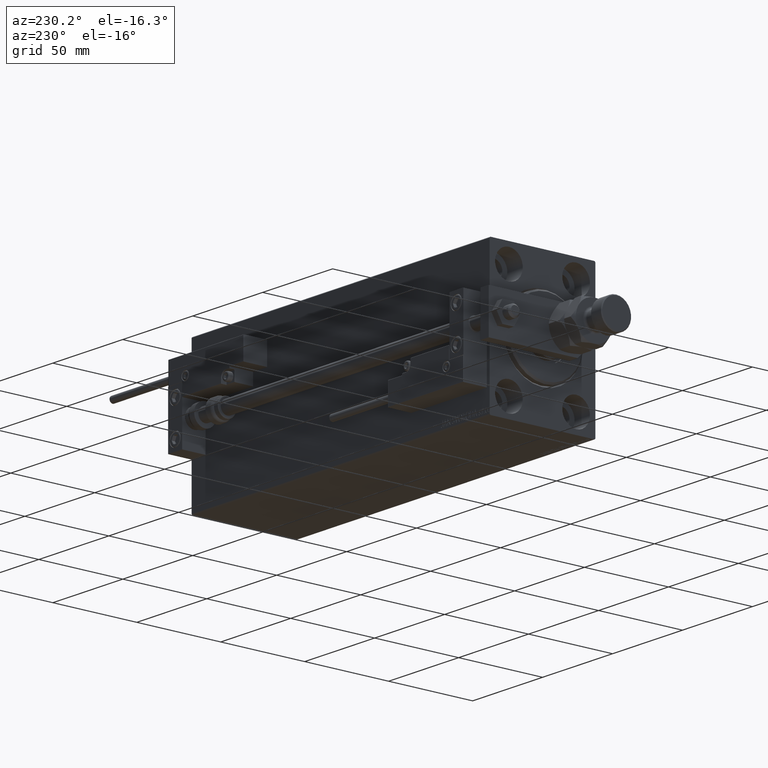
[diagram: clean part render]
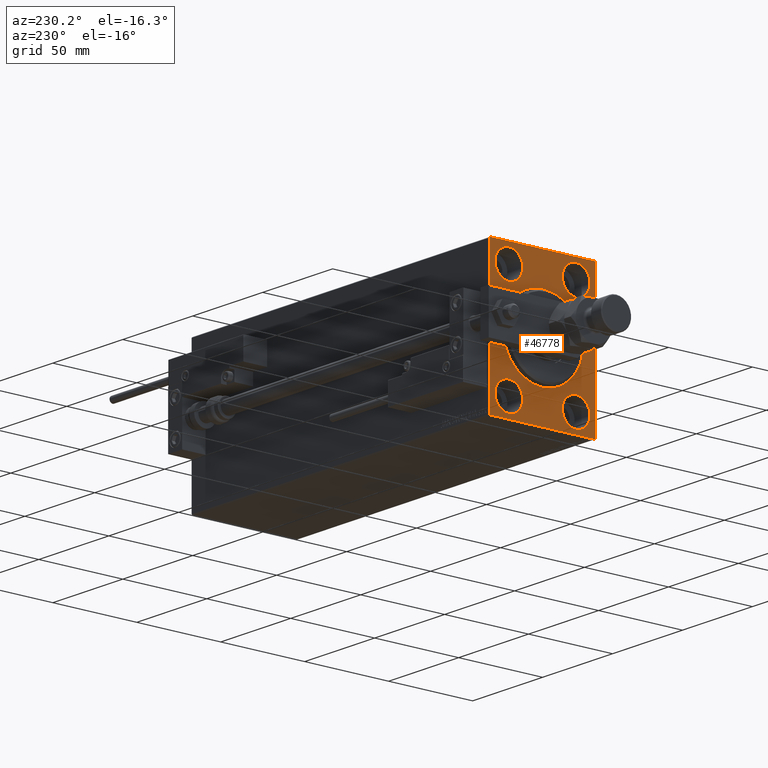
[diagram: same view with one face highlighted and labeled with its STEP entity id]
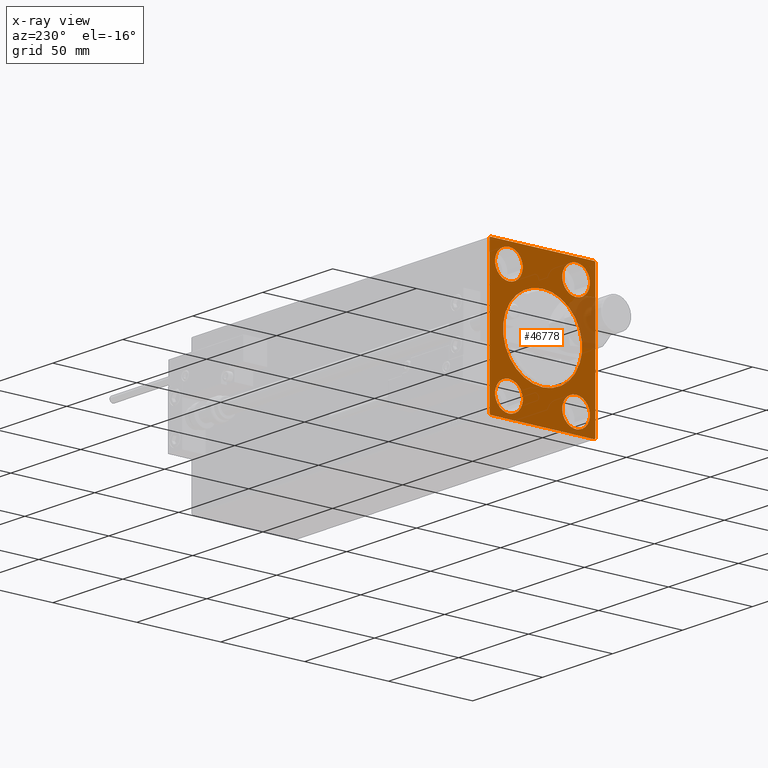
[diagram: x-ray of the same camera — body ghosted, the highlighted face saturated]
A machine part, auxiliary view. The second image highlights one B-rep face of the part: STEP entity #46778.
The next image is the same camera in x-ray: the body ghosted, the highlighted face saturated — about 10% of this face is hidden behind the body in this view.
In plain terms, the highlighted planar face has unit normal (1, 0, 0).
Its self-contained STEP definition (entity closure, byte-faithful):
#49 = CARTESIAN_POINT ( 'NONE',  ( 0.000000000000000000, 20.00000000000000355, 31.50000000000000000 ) ) ;
#116 = FACE_BOUND ( 'NONE', #24507, .T. ) ;
#239 = ORIENTED_EDGE ( 'NONE', *, *, #20538, .T. ) ;
#650 = DIRECTION ( 'NONE',  ( -0.000000000000000000, 0.7071067811865474617, 0.7071067811865474617 ) ) ;
#747 = CARTESIAN_POINT ( 'NONE',  ( 0.000000000000000000, 31.00000000000000000, 42.50000000000000711 ) ) ;
#900 = DIRECTION ( 'NONE',  ( -1.000000000000000000, 0.000000000000000000, 0.000000000000000000 ) ) ;
#915 = DIRECTION ( 'NONE',  ( -0.000000000000000000, -0.7071067811865474617, 0.7071067811865474617 ) ) ;
#1416 = VERTEX_POINT ( 'NONE', #13866 ) ;
#1520 = AXIS2_PLACEMENT_3D ( 'NONE', #28145, #24224, #36265 ) ;
#1670 = VECTOR ( 'NONE', #20394, 1000.000000000000114 ) ;
#2887 = ORIENTED_EDGE ( 'NONE', *, *, #42961, .F. ) ;
#3552 = FACE_BOUND ( 'NONE', #5518, .T. ) ;
#3731 = AXIS2_PLACEMENT_3D ( 'NONE', #9117, #32650, #40477 ) ;
#4458 = LINE ( 'NONE', #16995, #1670 ) ;
#4510 = VERTEX_POINT ( 'NONE', #8345 ) ;
#4522 = EDGE_CURVE ( 'NONE', #49983, #11042, #28918, .T. ) ;
#4584 = CIRCLE ( 'NONE', #3731, 8.250000000000000000 ) ;
#4688 = VECTOR ( 'NONE', #41697, 1000.000000000000000 ) ;
#4996 = AXIS2_PLACEMENT_3D ( 'NONE', #16097, #900, #20269 ) ;
#5462 = ORIENTED_EDGE ( 'NONE', *, *, #51056, .F. ) ;
#5518 = EDGE_LOOP ( 'NONE', ( #13144, #45182 ) ) ;
#6024 = DIRECTION ( 'NONE',  ( -1.000000000000000000, 0.000000000000000000, 0.000000000000000000 ) ) ;
#6096 = EDGE_CURVE ( 'NONE', #23954, #4510, #47262, .T. ) ;
#6410 = AXIS2_PLACEMENT_3D ( 'NONE', #35302, #35801, #47842 ) ;
#6929 = CARTESIAN_POINT ( 'NONE',  ( 0.000000000000000000, 19.99999999999999645, -39.74999999999999289 ) ) ;
#7254 = VERTEX_POINT ( 'NONE', #35149 ) ;
#8289 = CARTESIAN_POINT ( 'NONE',  ( 0.000000000000000000, 20.00000000000000355, 39.74999999999999289 ) ) ;
#8345 = CARTESIAN_POINT ( 'NONE',  ( 0.000000000000000000, 20.00000000000000355, 23.25000000000000355 ) ) ;
#8774 = LINE ( 'NONE', #36485, #30946 ) ;
#8866 = CARTESIAN_POINT ( 'NONE',  ( 0.000000000000000000, -20.00000000000000355, -23.24999999999999289 ) ) ;
#9117 = CARTESIAN_POINT ( 'NONE',  ( 0.000000000000000000, -20.00000000000000355, -31.49999999999999289 ) ) ;
#9583 = VERTEX_POINT ( 'NONE', #8866 ) ;
#9714 = DIRECTION ( 'NONE',  ( 0.000000000000000000, 0.000000000000000000, 1.000000000000000000 ) ) ;
#9942 = EDGE_CURVE ( 'NONE', #44252, #15308, #16635, .T. ) ;
#10386 = CIRCLE ( 'NONE', #39580, 8.249999999999992895 ) ;
#11042 = VERTEX_POINT ( 'NONE', #28094 ) ;
#11200 = CIRCLE ( 'NONE', #40404, 8.250000000000000000 ) ;
#11330 = DIRECTION ( 'NONE',  ( -1.000000000000000000, 0.000000000000000000, 0.000000000000000000 ) ) ;
#11393 = EDGE_LOOP ( 'NONE', ( #29716, #35190 ) ) ;
#11480 = CARTESIAN_POINT ( 'NONE',  ( 0.000000000000000000, 31.50000000000000000, 42.00000000000000711 ) ) ;
#11553 = ORIENTED_EDGE ( 'NONE', *, *, #19948, .T. ) ;
#11908 = DIRECTION ( 'NONE',  ( 0.000000000000000000, 0.000000000000000000, -1.000000000000000000 ) ) ;
#12151 = FACE_BOUND ( 'NONE', #11393, .T. ) ;
#12333 = ORIENTED_EDGE ( 'NONE', *, *, #6096, .F. ) ;
#12496 = CARTESIAN_POINT ( 'NONE',  ( 0.000000000000000000, -20.00000000000000355, -31.49999999999999289 ) ) ;
#12755 = DIRECTION ( 'NONE',  ( 0.000000000000000000, 0.000000000000000000, 1.000000000000000000 ) ) ;
#12768 = EDGE_CURVE ( 'NONE', #48497, #13459, #14905, .T. ) ;
#13144 = ORIENTED_EDGE ( 'NONE', *, *, #12768, .T. ) ;
#13459 = VERTEX_POINT ( 'NONE', #36339 ) ;
#13866 = CARTESIAN_POINT ( 'NONE',  ( 0.000000000000000000, 31.50000000000001421, -42.00000000000000711 ) ) ;
#14037 = ORIENTED_EDGE ( 'NONE', *, *, #22993, .T. ) ;
#14226 = ORIENTED_EDGE ( 'NONE', *, *, #44478, .F. ) ;
#14531 = CARTESIAN_POINT ( 'NONE',  ( 0.000000000000000000, 31.00000000000001421, -42.50000000000000711 ) ) ;
#14627 = CARTESIAN_POINT ( 'NONE',  ( 0.000000000000000000, 0.000000000000000000, 23.50000000000004619 ) ) ;
#14905 = CIRCLE ( 'NONE', #1520, 23.50000000000004619 ) ;
#15069 = EDGE_CURVE ( 'NONE', #11042, #49983, #36724, .T. ) ;
#15197 = EDGE_CURVE ( 'NONE', #13459, #48497, #44223, .T. ) ;
#15308 = VERTEX_POINT ( 'NONE', #14531 ) ;
#16097 = CARTESIAN_POINT ( 'NONE',  ( 0.000000000000000000, -19.99999999999999645, 31.50000000000000000 ) ) ;
#16112 = CARTESIAN_POINT ( 'NONE',  ( 0.000000000000000000, -31.00000000000000000, -42.50000000000000711 ) ) ;
#16364 = VECTOR ( 'NONE', #48403, 1000.000000000000000 ) ;
#16635 = LINE ( 'NONE', #24731, #29811 ) ;
#16846 = ORIENTED_EDGE ( 'NONE', *, *, #9942, .F. ) ;
#16936 = DIRECTION ( 'NONE',  ( -1.000000000000000000, 0.000000000000000000, 0.000000000000000000 ) ) ;
#16995 = CARTESIAN_POINT ( 'NONE',  ( 0.000000000000000000, 31.50000000000001421, -42.00000000000000711 ) ) ;
#17166 = AXIS2_PLACEMENT_3D ( 'NONE', #49, #11330, #28032 ) ;
#17641 = CARTESIAN_POINT ( 'NONE',  ( 0.000000000000000000, 0.000000000000000000, 0.000000000000000000 ) ) ;
#17730 = ORIENTED_EDGE ( 'NONE', *, *, #34959, .F. ) ;
#19663 = VERTEX_POINT ( 'NONE', #6929 ) ;
#19948 = EDGE_CURVE ( 'NONE', #1416, #15308, #4458, .T. ) ;
#20071 = VECTOR ( 'NONE', #39978, 1000.000000000000114 ) ;
#20269 = DIRECTION ( 'NONE',  ( 0.000000000000000000, 0.000000000000000000, 1.000000000000000000 ) ) ;
#20394 = DIRECTION ( 'NONE',  ( 0.000000000000000000, -0.7071067811865474617, -0.7071067811865474617 ) ) ;
#20538 = EDGE_CURVE ( 'NONE', #21484, #27439, #8774, .T. ) ;
#20756 = CARTESIAN_POINT ( 'NONE',  ( 0.000000000000000000, -31.50000000000000000, -42.00000000000000711 ) ) ;
#21484 = VERTEX_POINT ( 'NONE', #22355 ) ;
#21718 = CARTESIAN_POINT ( 'NONE',  ( 0.000000000000000000, -20.00000000000000355, -39.74999999999999289 ) ) ;
#22081 = EDGE_CURVE ( 'NONE', #26207, #27439, #46030, .T. ) ;
#22355 = CARTESIAN_POINT ( 'NONE',  ( 0.000000000000000000, -31.50000000000000000, 41.99999999999999289 ) ) ;
#22739 = CARTESIAN_POINT ( 'NONE',  ( 0.000000000000000000, 20.00000000000000355, 31.50000000000000000 ) ) ;
#22993 = EDGE_CURVE ( 'NONE', #26207, #41857, #40240, .T. ) ;
#23954 = VERTEX_POINT ( 'NONE', #8289 ) ;
#24224 = DIRECTION ( 'NONE',  ( 1.000000000000000000, 0.000000000000000000, 0.000000000000000000 ) ) ;
#24462 = LINE ( 'NONE', #16112, #30552 ) ;
#24507 = EDGE_LOOP ( 'NONE', ( #29521, #17730 ) ) ;
#24731 = CARTESIAN_POINT ( 'NONE',  ( 0.000000000000000000, -31.50000000000000000, -42.50000000000000711 ) ) ;
#24756 = CIRCLE ( 'NONE', #38094, 8.250000000000000000 ) ;
#26207 = VERTEX_POINT ( 'NONE', #49529 ) ;
#27439 = VERTEX_POINT ( 'NONE', #50780 ) ;
#27845 = FACE_BOUND ( 'NONE', #44175, .T. ) ;
#28032 = DIRECTION ( 'NONE',  ( 0.000000000000000000, 0.000000000000000000, 1.000000000000000000 ) ) ;
#28094 = CARTESIAN_POINT ( 'NONE',  ( 0.000000000000000000, -19.99999999999999645, 23.25000000000000355 ) ) ;
#28145 = CARTESIAN_POINT ( 'NONE',  ( 0.000000000000000000, 0.000000000000000000, 0.000000000000000000 ) ) ;
#28918 = CIRCLE ( 'NONE', #6410, 8.249999999999992895 ) ;
#29521 = ORIENTED_EDGE ( 'NONE', *, *, #36925, .F. ) ;
#29716 = ORIENTED_EDGE ( 'NONE', *, *, #4522, .F. ) ;
#29811 = VECTOR ( 'NONE', #51447, 1000.000000000000000 ) ;
#30016 = ORIENTED_EDGE ( 'NONE', *, *, #43230, .F. ) ;
#30036 = AXIS2_PLACEMENT_3D ( 'NONE', #17641, #33601, #38022 ) ;
#30425 = EDGE_LOOP ( 'NONE', ( #30016, #239, #43175, #14037, #2887, #11553, #16846, #38248 ) ) ;
#30552 = VECTOR ( 'NONE', #915, 1000.000000000000114 ) ;
#30603 = DIRECTION ( 'NONE',  ( -1.000000000000000000, 0.000000000000000000, 0.000000000000000000 ) ) ;
#30866 = CARTESIAN_POINT ( 'NONE',  ( 0.000000000000000000, 19.99999999999999645, -31.49999999999999289 ) ) ;
#30946 = VECTOR ( 'NONE', #650, 1000.000000000000114 ) ;
#31259 = FACE_BOUND ( 'NONE', #34199, .T. ) ;
#31408 = CARTESIAN_POINT ( 'NONE',  ( 0.000000000000000000, 19.99999999999999645, -31.49999999999999289 ) ) ;
#31673 = CIRCLE ( 'NONE', #38351, 8.250000000000000000 ) ;
#32477 = CARTESIAN_POINT ( 'NONE',  ( 0.000000000000000000, -31.00000000000000000, -42.50000000000000711 ) ) ;
#32650 = DIRECTION ( 'NONE',  ( -1.000000000000000000, 0.000000000000000000, 0.000000000000000000 ) ) ;
#32716 = CARTESIAN_POINT ( 'NONE',  ( 0.000000000000000000, 31.50000000000001421, -42.50000000000000711 ) ) ;
#33601 = DIRECTION ( 'NONE',  ( 1.000000000000000000, 0.000000000000000000, 0.000000000000000000 ) ) ;
#33678 = LINE ( 'NONE', #32716, #16364 ) ;
#34199 = EDGE_LOOP ( 'NONE', ( #14226, #5462 ) ) ;
#34445 = VECTOR ( 'NONE', #38956, 1000.000000000000000 ) ;
#34959 = EDGE_CURVE ( 'NONE', #44410, #9583, #11200, .T. ) ;
#35149 = CARTESIAN_POINT ( 'NONE',  ( 0.000000000000000000, 19.99999999999999645, -23.24999999999999289 ) ) ;
#35190 = ORIENTED_EDGE ( 'NONE', *, *, #15069, .F. ) ;
#35302 = CARTESIAN_POINT ( 'NONE',  ( 0.000000000000000000, -19.99999999999999645, 31.50000000000000000 ) ) ;
#35448 = FACE_OUTER_BOUND ( 'NONE', #30425, .T. ) ;
#35801 = DIRECTION ( 'NONE',  ( -1.000000000000000000, 0.000000000000000000, 0.000000000000000000 ) ) ;
#35806 = EDGE_CURVE ( 'NONE', #4510, #23954, #10386, .T. ) ;
#36265 = DIRECTION ( 'NONE',  ( 0.000000000000000000, 0.000000000000000000, -1.000000000000000000 ) ) ;
#36339 = CARTESIAN_POINT ( 'NONE',  ( 0.000000000000000000, 2.877919977996285448E-15, -23.50000000000004619 ) ) ;
#36365 = DIRECTION ( 'NONE',  ( 0.000000000000000000, 0.000000000000000000, 1.000000000000000000 ) ) ;
#36485 = CARTESIAN_POINT ( 'NONE',  ( 0.000000000000000000, -31.50000000000000000, 41.99999999999999289 ) ) ;
#36724 = CIRCLE ( 'NONE', #4996, 8.249999999999992895 ) ;
#36925 = EDGE_CURVE ( 'NONE', #9583, #44410, #4584, .T. ) ;
#37778 = LINE ( 'NONE', #49301, #4688 ) ;
#38022 = DIRECTION ( 'NONE',  ( 0.000000000000000000, 0.000000000000000000, -1.000000000000000000 ) ) ;
#38094 = AXIS2_PLACEMENT_3D ( 'NONE', #30866, #30603, #9714 ) ;
#38248 = ORIENTED_EDGE ( 'NONE', *, *, #43169, .T. ) ;
#38351 = AXIS2_PLACEMENT_3D ( 'NONE', #31408, #44465, #36365 ) ;
#38956 = DIRECTION ( 'NONE',  ( 0.000000000000000000, -1.000000000000000000, -2.202823461557850341E-16 ) ) ;
#39580 = AXIS2_PLACEMENT_3D ( 'NONE', #22739, #6024, #42614 ) ;
#39978 = DIRECTION ( 'NONE',  ( -0.000000000000000000, 0.7071067811865474617, -0.7071067811865474617 ) ) ;
#40240 = LINE ( 'NONE', #747, #20071 ) ;
#40404 = AXIS2_PLACEMENT_3D ( 'NONE', #12496, #16936, #12755 ) ;
#40477 = DIRECTION ( 'NONE',  ( 0.000000000000000000, 0.000000000000000000, 1.000000000000000000 ) ) ;
#40645 = ORIENTED_EDGE ( 'NONE', *, *, #35806, .F. ) ;
#41697 = DIRECTION ( 'NONE',  ( 0.000000000000000000, 0.000000000000000000, -1.000000000000000000 ) ) ;
#41857 = VERTEX_POINT ( 'NONE', #11480 ) ;
#42614 = DIRECTION ( 'NONE',  ( 0.000000000000000000, 0.000000000000000000, 1.000000000000000000 ) ) ;
#42961 = EDGE_CURVE ( 'NONE', #1416, #41857, #33678, .T. ) ;
#43169 = EDGE_CURVE ( 'NONE', #44252, #49014, #24462, .T. ) ;
#43175 = ORIENTED_EDGE ( 'NONE', *, *, #22081, .F. ) ;
#43230 = EDGE_CURVE ( 'NONE', #21484, #49014, #37778, .T. ) ;
#43291 = CARTESIAN_POINT ( 'NONE',  ( 0.000000000000000000, 0.000000000000000000, 0.000000000000000000 ) ) ;
#44175 = EDGE_LOOP ( 'NONE', ( #12333, #40645 ) ) ;
#44223 = CIRCLE ( 'NONE', #30036, 23.50000000000004619 ) ;
#44252 = VERTEX_POINT ( 'NONE', #32477 ) ;
#44410 = VERTEX_POINT ( 'NONE', #21718 ) ;
#44465 = DIRECTION ( 'NONE',  ( -1.000000000000000000, 0.000000000000000000, 0.000000000000000000 ) ) ;
#44478 = EDGE_CURVE ( 'NONE', #7254, #19663, #24756, .T. ) ;
#45182 = ORIENTED_EDGE ( 'NONE', *, *, #15197, .T. ) ;
#46030 = LINE ( 'NONE', #46814, #34445 ) ;
#46778 = ADVANCED_FACE ( 'NONE', ( #3552, #31259, #12151, #27845, #116, #35448 ), #51664, .F. ) ;
#46814 = CARTESIAN_POINT ( 'NONE',  ( 0.000000000000000000, 31.50000000000000000, 42.50000000000000711 ) ) ;
#47262 = CIRCLE ( 'NONE', #17166, 8.249999999999992895 ) ;
#47842 = DIRECTION ( 'NONE',  ( 0.000000000000000000, 0.000000000000000000, 1.000000000000000000 ) ) ;
#48403 = DIRECTION ( 'NONE',  ( 0.000000000000000000, -1.632680918566406300E-16, 1.000000000000000000 ) ) ;
#48497 = VERTEX_POINT ( 'NONE', #14627 ) ;
#49014 = VERTEX_POINT ( 'NONE', #20756 ) ;
#49301 = CARTESIAN_POINT ( 'NONE',  ( 0.000000000000000000, -31.50000000000000000, 42.49999999999999289 ) ) ;
#49529 = CARTESIAN_POINT ( 'NONE',  ( 0.000000000000000000, 31.00000000000000000, 42.50000000000000711 ) ) ;
#49900 = AXIS2_PLACEMENT_3D ( 'NONE', #43291, #51404, #11908 ) ;
#49983 = VERTEX_POINT ( 'NONE', #50528 ) ;
#50528 = CARTESIAN_POINT ( 'NONE',  ( 0.000000000000000000, -19.99999999999999645, 39.74999999999999289 ) ) ;
#50780 = CARTESIAN_POINT ( 'NONE',  ( 0.000000000000000000, -31.00000000000000000, 42.49999999999999289 ) ) ;
#51056 = EDGE_CURVE ( 'NONE', #19663, #7254, #31673, .T. ) ;
#51404 = DIRECTION ( 'NONE',  ( 1.000000000000000000, 0.000000000000000000, 0.000000000000000000 ) ) ;
#51447 = DIRECTION ( 'NONE',  ( 0.000000000000000000, 1.000000000000000000, 0.000000000000000000 ) ) ;
#51664 = PLANE ( 'NONE',  #49900 ) ;